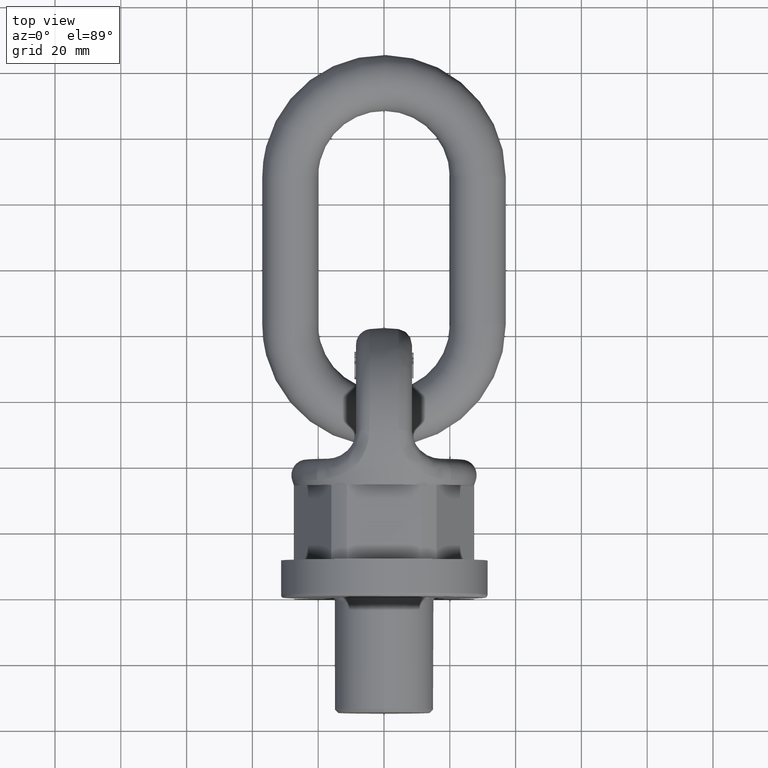
[diagram: clean part render]
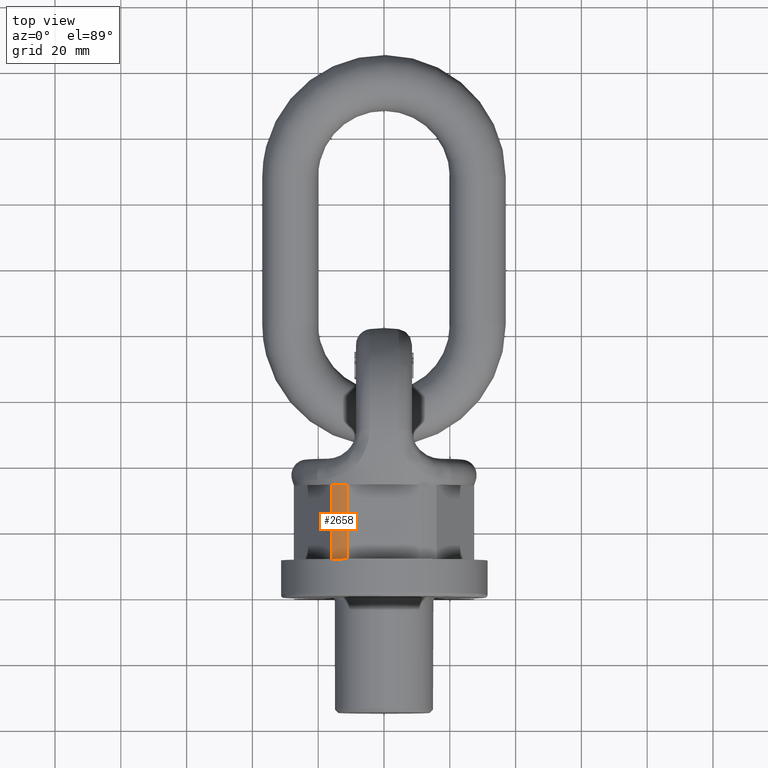
[diagram: same view with one face highlighted and labeled with its STEP entity id]
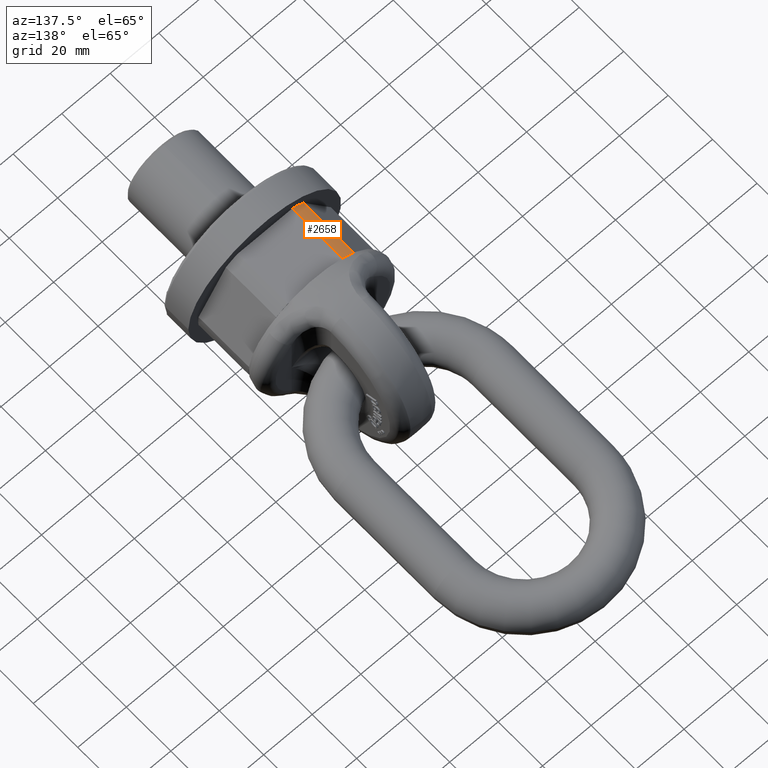
[diagram: same view with one face highlighted and labeled with its STEP entity id]
A machine part, top view. The second image highlights one B-rep face of the part: STEP entity #2658.
A second angle (auxiliary view) of the same face is appended — the face is thin or edge-on in the first view.
In plain terms, the highlighted cylindrical surface (partial cylindrical patch) has radius 27.4241 mm, axis along (-0, 1, 0).
Its self-contained STEP definition (entity closure, byte-faithful):
#1816=FACE_OUTER_BOUND('',#3081,.T.);
#2024=CYLINDRICAL_SURFACE('',#5633,27.4241377865072);
#2048=LINE('',#6607,#2304);
#2062=LINE('',#6635,#2318);
#2304=VECTOR('',#5844,1.);
#2318=VECTOR('',#5868,1.);
#2658=ADVANCED_FACE('',(#1816),#2024,.T.);
#3081=EDGE_LOOP('',(#3416,#3417,#3418,#3419));
#3416=ORIENTED_EDGE('',*,*,#4947,.F.);
#3417=ORIENTED_EDGE('',*,*,#4972,.T.);
#3418=ORIENTED_EDGE('',*,*,#4977,.T.);
#3419=ORIENTED_EDGE('',*,*,#4958,.T.);
#4549=VERTEX_POINT('',#6583);
#4550=VERTEX_POINT('',#6585);
#4560=VERTEX_POINT('',#6608);
#4569=VERTEX_POINT('',#6636);
#4947=EDGE_CURVE('',#4549,#4550,#5541,.T.);
#4958=EDGE_CURVE('',#4560,#4550,#2048,.T.);
#4972=EDGE_CURVE('',#4549,#4569,#2062,.T.);
#4977=EDGE_CURVE('',#4569,#4560,#5549,.T.);
#5541=CIRCLE('',#5609,27.4241377865072);
#5549=CIRCLE('',#5625,27.4241377865072);
#5609=AXIS2_PLACEMENT_3D('',#6584,#5823,#5824);
#5625=AXIS2_PLACEMENT_3D('',#6643,#5877,#5878);
#5633=AXIS2_PLACEMENT_3D('',#6651,#5893,#5894);
#5823=DIRECTION('',(4.23223526175924E-17,-1.,0.));
#5824=DIRECTION('',(-1.,-6.32553515257751E-17,0.));
#5844=DIRECTION('',(2.4492935982947E-17,-1.,0.));
#5868=DIRECTION('',(-2.4492935982947E-17,1.,0.));
#5877=DIRECTION('',(0.,-1.,0.));
#5878=DIRECTION('',(0.,0.,-1.));
#5893=DIRECTION('',(-2.4492935982947E-17,1.,0.));
#5894=DIRECTION('',(-1.,-2.4492935982947E-17,0.));
#6583=CARTESIAN_POINT('',(-11.2731243820572,11.3333333333333,25.));
#6584=CARTESIAN_POINT('',(-2.77586607806733E-16,11.3333333333333,0.));
#6585=CARTESIAN_POINT('',(-16.0140729035823,11.3333333333333,22.2628120948833));
#6607=CARTESIAN_POINT('',(-16.0140729035823,1.38055956908764E-16,22.2628120948833));
#6608=CARTESIAN_POINT('',(-16.0140729035823,34.,22.2628120948833));
#6635=CARTESIAN_POINT('',(-11.2731243820572,-2.76111913817527E-16,25.));
#6636=CARTESIAN_POINT('',(-11.2731243820572,34.,25.));
#6643=CARTESIAN_POINT('',(-8.327598234202E-16,34.,0.));
#6651=CARTESIAN_POINT('',(0.,0.,0.));